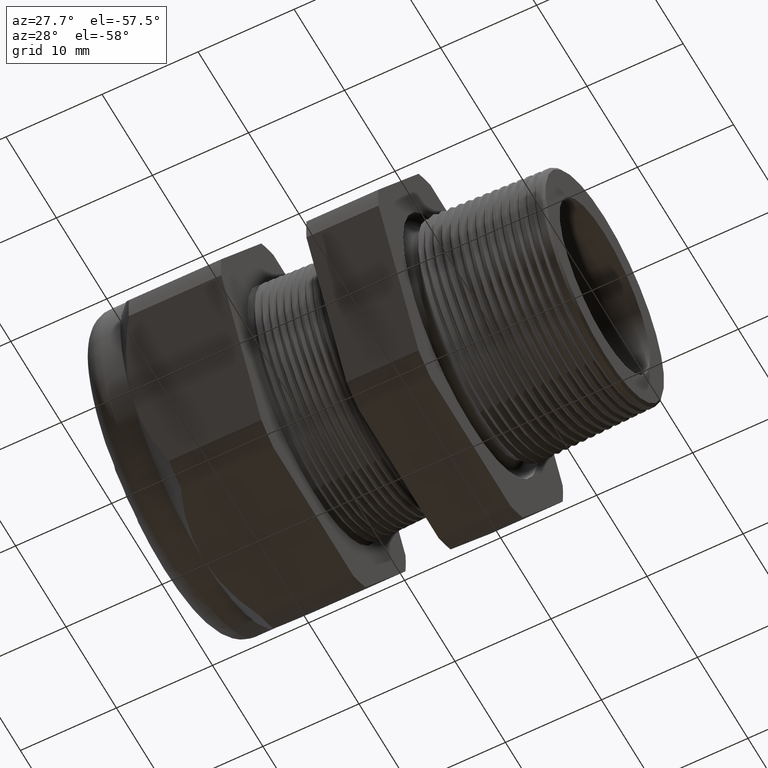
[diagram: clean part render]
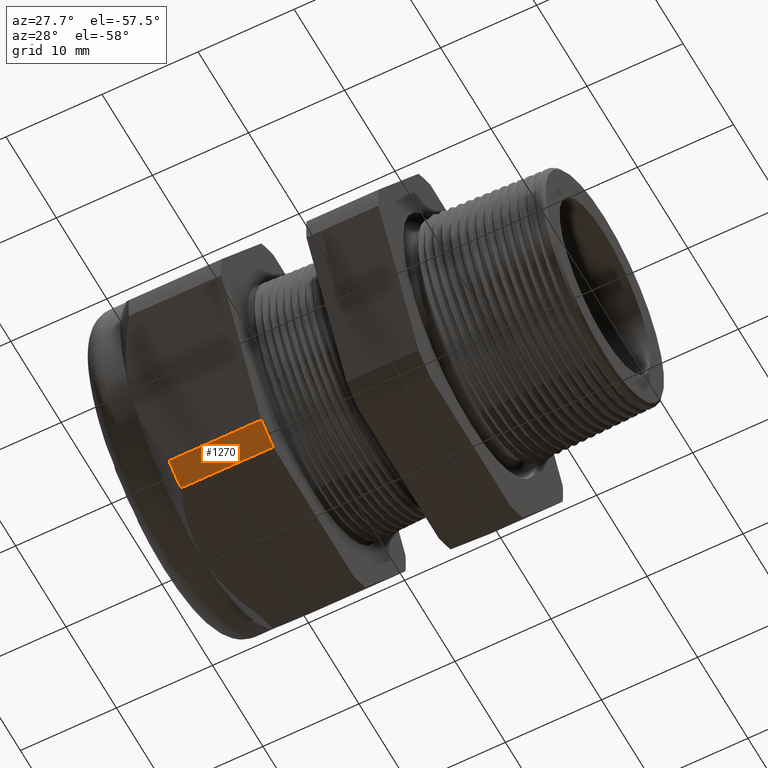
[diagram: same view with one face highlighted and labeled with its STEP entity id]
A machine part, auxiliary view. The second image highlights one B-rep face of the part: STEP entity #1270.
In plain terms, the highlighted cylindrical surface (partial cylindrical patch) has radius 18.3261 mm, axis along (-1, 0, 0).
Its self-contained STEP definition (entity closure, byte-faithful):
#1261 = VERTEX_POINT ( 'NONE', #4542 ) ;
#1262 = VERTEX_POINT ( 'NONE', #4541 ) ;
#1270 = ADVANCED_FACE ( 'NONE', ( #4577 ), #4576, .T. ) ;
#1271 = EDGE_LOOP ( 'NONE', ( #1272, #1332, #1334, #1335 ) ) ;
#1272 = ORIENTED_EDGE ( 'NONE', *, *, #1273, .T. ) ;
#1273 = EDGE_CURVE ( 'NONE', #1330, #1331, #4632, .T. ) ;
#1288 = EDGE_CURVE ( 'NONE', #1261, #1262, #4664, .T. ) ;
#1330 = VERTEX_POINT ( 'NONE', #4752 ) ;
#1331 = VERTEX_POINT ( 'NONE', #4751 ) ;
#1332 = ORIENTED_EDGE ( 'NONE', *, *, #1333, .T. ) ;
#1333 = EDGE_CURVE ( 'NONE', #1331, #1262, #4750, .T. ) ;
#1334 = ORIENTED_EDGE ( 'NONE', *, *, #1288, .F. ) ;
#1335 = ORIENTED_EDGE ( 'NONE', *, *, #1336, .F. ) ;
#1336 = EDGE_CURVE ( 'NONE', #1330, #1261, #4745, .T. ) ;
#4541 = CARTESIAN_POINT ( 'NONE',  ( -1.333145669291338800, -0.3131489262315934600, -0.6500000000000001300 ) ) ;
#4542 = CARTESIAN_POINT ( 'NONE',  ( -0.9546456692913385400, -0.3131489262315934100, -0.6500000000000001300 ) ) ;
#4572 = DIRECTION ( 'NONE',  ( 0.0000000000000000000, 0.0000000000000000000, 1.000000000000000000 ) ) ;
#4573 = DIRECTION ( 'NONE',  ( -1.000000000000000000, 0.0000000000000000000, 0.0000000000000000000 ) ) ;
#4574 = CARTESIAN_POINT ( 'NONE',  ( 0.2400000000000001900, 0.0000000000000000000, 0.0000000000000000000 ) ) ;
#4575 = AXIS2_PLACEMENT_3D ( 'NONE', #4574, #4573, #4572 ) ;
#4576 = CYLINDRICAL_SURFACE ( 'NONE', #4575, 0.7215000000000000300 ) ;
#4577 = FACE_OUTER_BOUND ( 'NONE', #1271, .T. ) ;
#4629 = DIRECTION ( 'NONE',  ( -1.000000000000000000, 0.0000000000000000000, 0.0000000000000000000 ) ) ;
#4630 = VECTOR ( 'NONE', #4629, 39.37007874015748100 ) ;
#4631 = CARTESIAN_POINT ( 'NONE',  ( 0.2400000000000001900, -0.4063420493440883500, -0.5961949252843792300 ) ) ;
#4632 = LINE ( 'NONE', #4631, #4630 ) ;
#4661 = DIRECTION ( 'NONE',  ( -1.000000000000000000, 0.0000000000000000000, 0.0000000000000000000 ) ) ;
#4662 = VECTOR ( 'NONE', #4661, 39.37007874015748100 ) ;
#4663 = CARTESIAN_POINT ( 'NONE',  ( 0.2400000000000001900, -0.3131489262315934100, -0.6500000000000001300 ) ) ;
#4664 = LINE ( 'NONE', #4663, #4662 ) ;
#4741 = DIRECTION ( 'NONE',  ( 0.0000000000000000000, 0.0000000000000000000, -1.000000000000000000 ) ) ;
#4742 = DIRECTION ( 'NONE',  ( 1.000000000000000000, 0.0000000000000000000, 0.0000000000000000000 ) ) ;
#4743 = CARTESIAN_POINT ( 'NONE',  ( -0.9546456692913385400, 0.0000000000000000000, 0.0000000000000000000 ) ) ;
#4744 = AXIS2_PLACEMENT_3D ( 'NONE', #4743, #4742, #4741 ) ;
#4745 = CIRCLE ( 'NONE', #4744, 0.7215000000000000300 ) ;
#4746 = DIRECTION ( 'NONE',  ( 0.0000000000000000000, 0.0000000000000000000, -1.000000000000000000 ) ) ;
#4747 = DIRECTION ( 'NONE',  ( 1.000000000000000000, 0.0000000000000000000, 0.0000000000000000000 ) ) ;
#4748 = CARTESIAN_POINT ( 'NONE',  ( -1.333145669291338600, 0.0000000000000000000, 0.0000000000000000000 ) ) ;
#4749 = AXIS2_PLACEMENT_3D ( 'NONE', #4748, #4747, #4746 ) ;
#4750 = CIRCLE ( 'NONE', #4749, 0.7215000000000000300 ) ;
#4751 = CARTESIAN_POINT ( 'NONE',  ( -1.333145669291338600, -0.4063420493440883500, -0.5961949252843792300 ) ) ;
#4752 = CARTESIAN_POINT ( 'NONE',  ( -0.9546456692913385400, -0.4063420493440883500, -0.5961949252843792300 ) ) ;